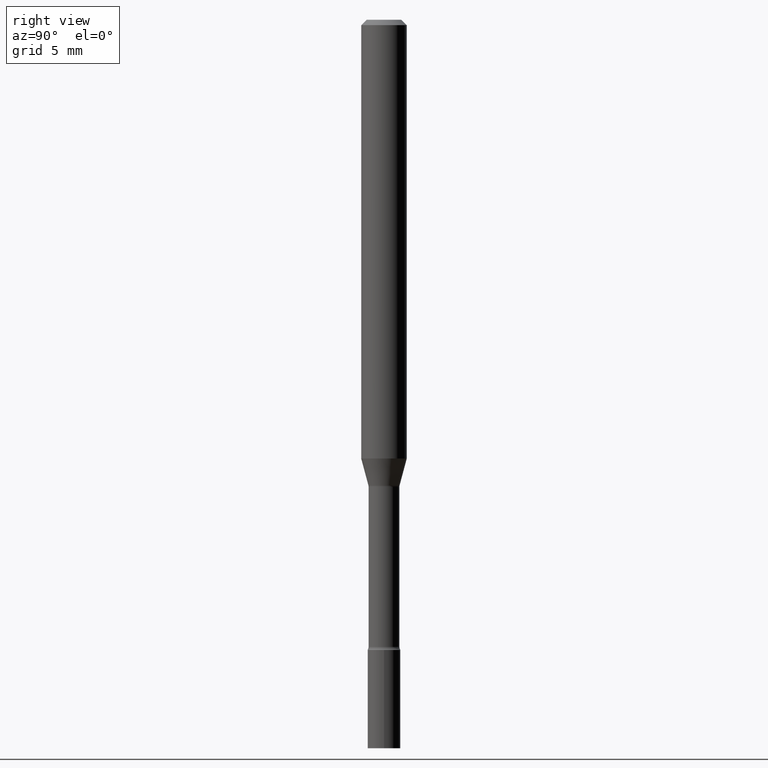
[diagram: clean part render]
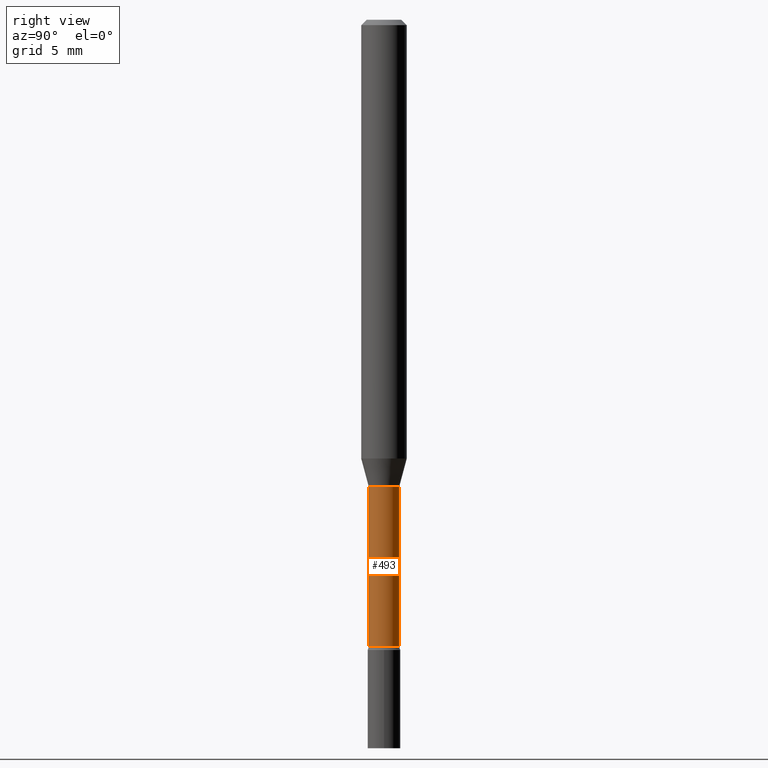
[diagram: same view with one face highlighted and labeled with its STEP entity id]
A machine part, right view. The second image highlights one B-rep face of the part: STEP entity #493.
In plain terms, the highlighted cylindrical surface (edge-blend (fillet) strip) has radius 1.0744 mm, axis along (-0, 0, 1).
Its self-contained STEP definition (entity closure, byte-faithful):
#12 = EDGE_CURVE ( 'NONE', #370, #306, #235, .T. ) ;
#23 = ORIENTED_EDGE ( 'NONE', *, *, #12, .F. ) ;
#24 = DIRECTION ( 'NONE',  ( -6.982962677686265133E-15, -1.000000000000000000, 6.458269488567996591E-15 ) ) ;
#42 = LINE ( 'NONE', #401, #146 ) ;
#43 = ORIENTED_EDGE ( 'NONE', *, *, #516, .T. ) ;
#98 = VERTEX_POINT ( 'NONE', #101 ) ;
#99 = EDGE_LOOP ( 'NONE', ( #459, #43, #184, #23 ) ) ;
#100 = CIRCLE ( 'NONE', #444, 0.04230000000000001120 ) ;
#101 = CARTESIAN_POINT ( 'NONE',  ( 3.005595772265644158E-16, 0.04229999999999552174, -1.281974787463811216 ) ) ;
#109 = VECTOR ( 'NONE', #191, 39.37007874015748143 ) ;
#111 = EDGE_CURVE ( 'NONE', #306, #98, #481, .T. ) ;
#135 = DIRECTION ( 'NONE',  ( -2.445564497008087352E-29, 3.491344304138296530E-15, 1.000000000000000000 ) ) ;
#140 = VERTEX_POINT ( 'NONE', #476 ) ;
#146 = VECTOR ( 'NONE', #206, 39.37007874015748143 ) ;
#178 = CARTESIAN_POINT ( 'NONE',  ( 3.135152026280984204E-29, -4.475815372260679983E-15, -1.281974787463810994 ) ) ;
#184 = ORIENTED_EDGE ( 'NONE', *, *, #111, .F. ) ;
#191 = DIRECTION ( 'NONE',  ( -2.445564497008087352E-29, 3.491344304138296135E-15, 1.000000000000000000 ) ) ;
#206 = DIRECTION ( 'NONE',  ( -2.445564497008087352E-29, 3.491344304138296135E-15, 1.000000000000000000 ) ) ;
#216 = AXIS2_PLACEMENT_3D ( 'NONE', #253, #292, #395 ) ;
#235 = LINE ( 'NONE', #385, #109 ) ;
#244 = EDGE_CURVE ( 'NONE', #370, #140, #100, .T. ) ;
#246 = CARTESIAN_POINT ( 'NONE',  ( -2.953793212660870466E-16, -0.04230000000000602028, -1.721414547187247068 ) ) ;
#253 = CARTESIAN_POINT ( 'NONE',  ( 0.000000000000000000, 0.000000000000000000, 0.000000000000000000 ) ) ;
#260 = DIRECTION ( 'NONE',  ( -6.982962677686266711E-15, -1.000000000000000000, 6.458269488567999747E-15 ) ) ;
#292 = DIRECTION ( 'NONE',  ( -2.445564497008087352E-29, 3.491344304138296530E-15, 1.000000000000000000 ) ) ;
#306 = VERTEX_POINT ( 'NONE', #396 ) ;
#370 = VERTEX_POINT ( 'NONE', #246 ) ;
#385 = CARTESIAN_POINT ( 'NONE',  ( -2.953793212661290535E-16, -0.04229999999999999732, 1.476838640650499535E-16 ) ) ;
#395 = DIRECTION ( 'NONE',  ( -6.982962677686266711E-15, -1.000000000000000000, 3.491344304138296924E-15 ) ) ;
#396 = CARTESIAN_POINT ( 'NONE',  ( -2.953793212660976469E-16, -0.04230000000000446597, -1.281974787463810772 ) ) ;
#401 = CARTESIAN_POINT ( 'NONE',  ( 3.005595772265223103E-16, 0.04229999999999999732, -1.476838640650499535E-16 ) ) ;
#444 = AXIS2_PLACEMENT_3D ( 'NONE', #505, #458, #24 ) ;
#458 = DIRECTION ( 'NONE',  ( -2.445564497008087352E-29, 3.491344304138296530E-15, 1.000000000000000000 ) ) ;
#459 = ORIENTED_EDGE ( 'NONE', *, *, #244, .T. ) ;
#476 = CARTESIAN_POINT ( 'NONE',  ( 3.101519041593259937E-16, 0.04229999999999400212, -1.721414547187247512 ) ) ;
#480 = CYLINDRICAL_SURFACE ( 'NONE', #216, 0.04229999999999999732 ) ;
#481 = CIRCLE ( 'NONE', #508, 0.04229999999999999039 ) ;
#483 = FACE_OUTER_BOUND ( 'NONE', #99, .T. ) ;
#493 = ADVANCED_FACE ( 'NONE', ( #483 ), #480, .T. ) ;
#505 = CARTESIAN_POINT ( 'NONE',  ( 4.209830301234384411E-29, -6.010050874383000873E-15, -1.721414547187247290 ) ) ;
#508 = AXIS2_PLACEMENT_3D ( 'NONE', #178, #135, #260 ) ;
#516 = EDGE_CURVE ( 'NONE', #140, #98, #42, .T. ) ;